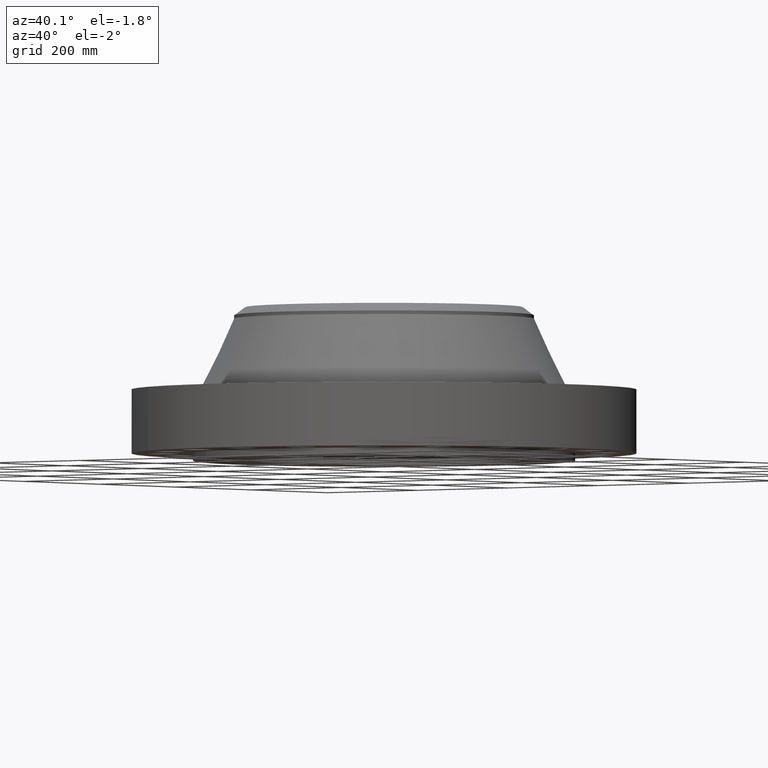
[diagram: clean part render]
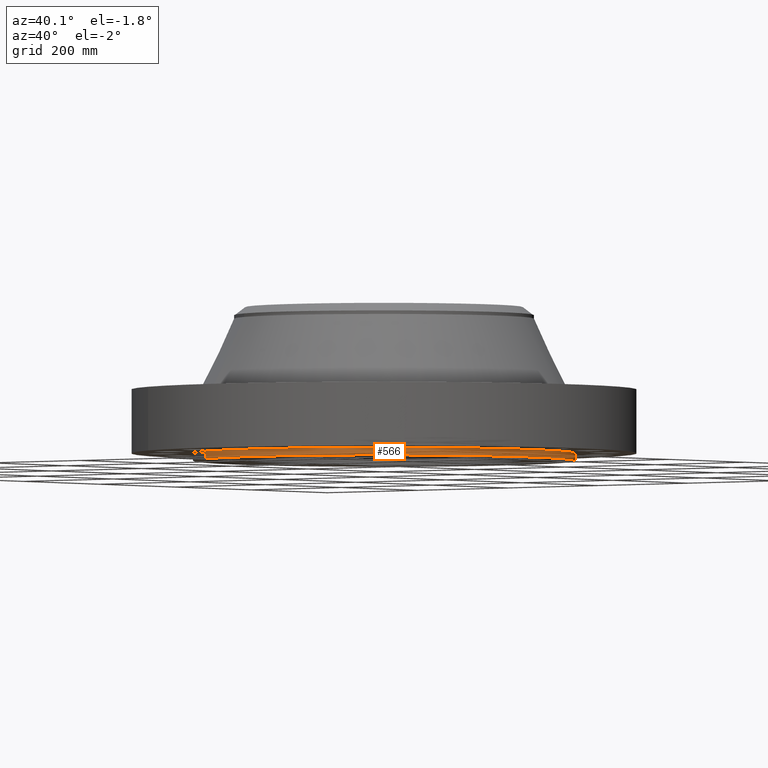
[diagram: same view with one face highlighted and labeled with its STEP entity id]
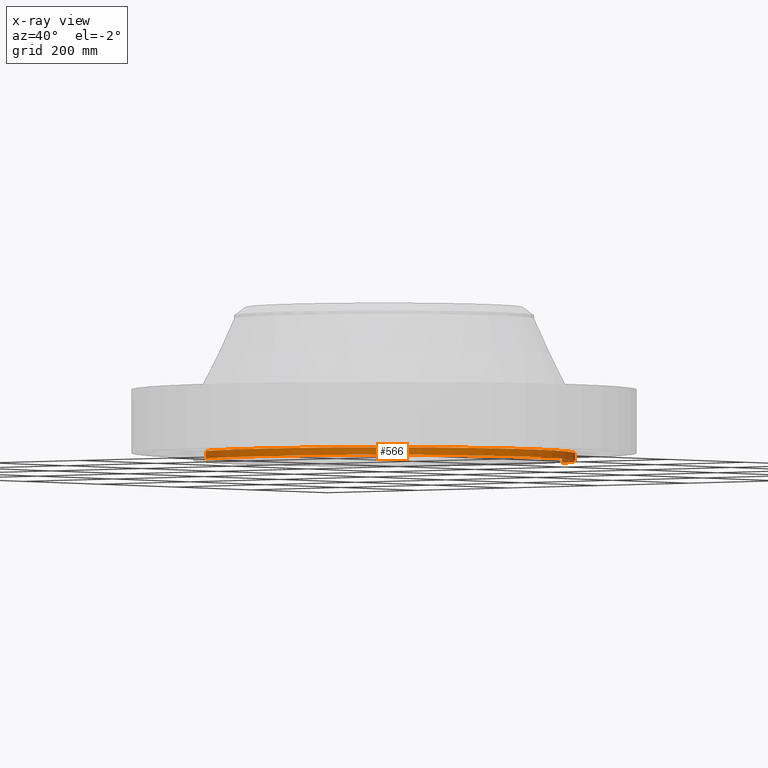
[diagram: x-ray of the same camera — body ghosted, the highlighted face saturated]
A machine part, auxiliary view. The second image highlights one B-rep face of the part: STEP entity #566.
The next image is the same camera in x-ray: the body ghosted, the highlighted face saturated — about 0% of this face is hidden behind the body in this view.
In plain terms, the highlighted cylindrical surface (partial cylindrical patch) has radius 323.85 mm, axis along (0, 0, -1).
Its self-contained STEP definition (entity closure, byte-faithful):
#513=AXIS2_PLACEMENT_3D('Cylinder Axis2P3D',#510,#511,#512) ;
#552=AXIS2_PLACEMENT_3D('Circle Axis2P3D',#550,#551,$) ;
#557=AXIS2_PLACEMENT_3D('Circle Axis2P3D',#555,#556,$) ;
#510=CARTESIAN_POINT('Axis2P3D Location',(0.,0.,4.62500000002)) ;
#519=CARTESIAN_POINT('Vertex',(-6.11267561723,-11.1891776641,-0.500000000002)) ;
#521=CARTESIAN_POINT('Vertex',(6.11267561723,11.1891776641,-0.500000000002)) ;
#524=CARTESIAN_POINT('Line Origine',(-6.11267561723,-11.1891776641,-0.250000000001)) ;
#528=CARTESIAN_POINT('Vertex',(-6.11267561723,-11.1891776641,2.23792987641E-015)) ;
#535=CARTESIAN_POINT('Vertex',(6.11267561723,11.1891776641,2.23792987641E-015)) ;
#538=CARTESIAN_POINT('Line Origine',(6.11267561723,11.1891776641,-0.250000000001)) ;
#550=CARTESIAN_POINT('Axis2P3D Location',(0.,0.,-0.500000000002)) ;
#555=CARTESIAN_POINT('Axis2P3D Location',(0.,0.,1.67844740731E-015)) ;
#511=DIRECTION('Axis2P3D Direction',(0.,0.,-0.0393700787402)) ;
#512=DIRECTION('Axis2P3D XDirection',(0.0188750212049,0.0345504945626,0.)) ;
#525=DIRECTION('Vector Direction',(0.,0.,-0.0393700787402)) ;
#539=DIRECTION('Vector Direction',(0.,0.,-0.0393700787402)) ;
#551=DIRECTION('Axis2P3D Direction',(0.,0.,-0.0393700787402)) ;
#556=DIRECTION('Axis2P3D Direction',(0.,0.,-0.0393700787402)) ;
#526=VECTOR('Line Direction',#525,0.0393700787402) ;
#540=VECTOR('Line Direction',#539,0.0393700787402) ;
#561=ORIENTED_EDGE('',*,*,#554,.F.) ;
#562=ORIENTED_EDGE('',*,*,#542,.T.) ;
#563=ORIENTED_EDGE('',*,*,#559,.T.) ;
#564=ORIENTED_EDGE('',*,*,#530,.F.) ;
#566=ADVANCED_FACE('PartBody',(#565),#514,.T.) ;
#553=CIRCLE('generated circle',#552,12.7500000001) ;
#558=CIRCLE('generated circle',#557,12.7500000001) ;
#514=CYLINDRICAL_SURFACE('generated cylinder',#513,12.7500000001) ;
#530=EDGE_CURVE('',#520,#529,#527,.F.) ;
#542=EDGE_CURVE('',#522,#536,#541,.F.) ;
#554=EDGE_CURVE('',#522,#520,#553,.T.) ;
#559=EDGE_CURVE('',#536,#529,#558,.T.) ;
#560=EDGE_LOOP('',(#561,#562,#563,#564)) ;
#565=FACE_OUTER_BOUND('',#560,.T.) ;
#527=LINE('Line',#524,#526) ;
#541=LINE('Line',#538,#540) ;
#520=VERTEX_POINT('',#519) ;
#522=VERTEX_POINT('',#521) ;
#529=VERTEX_POINT('',#528) ;
#536=VERTEX_POINT('',#535) ;